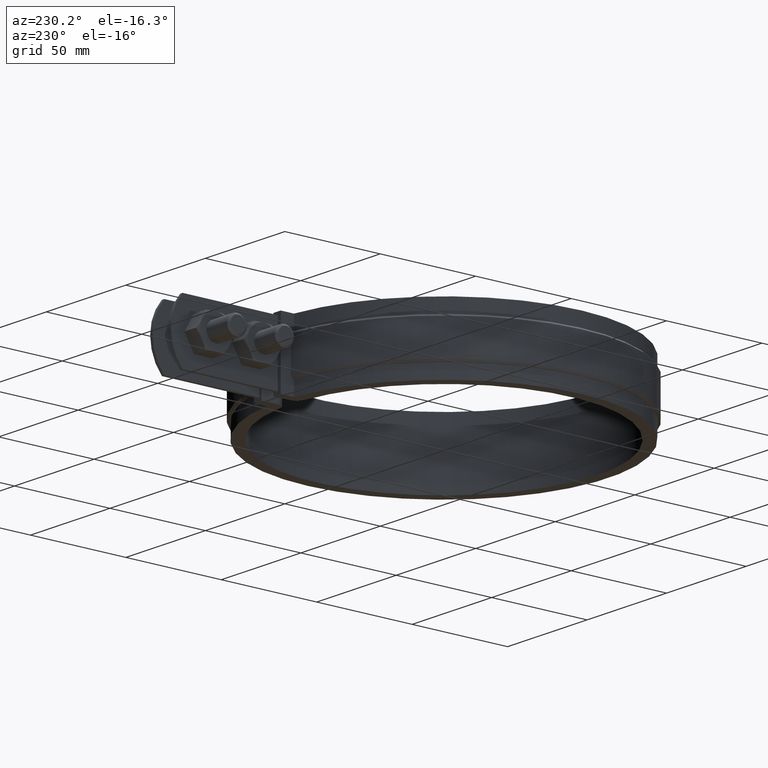
[diagram: clean part render]
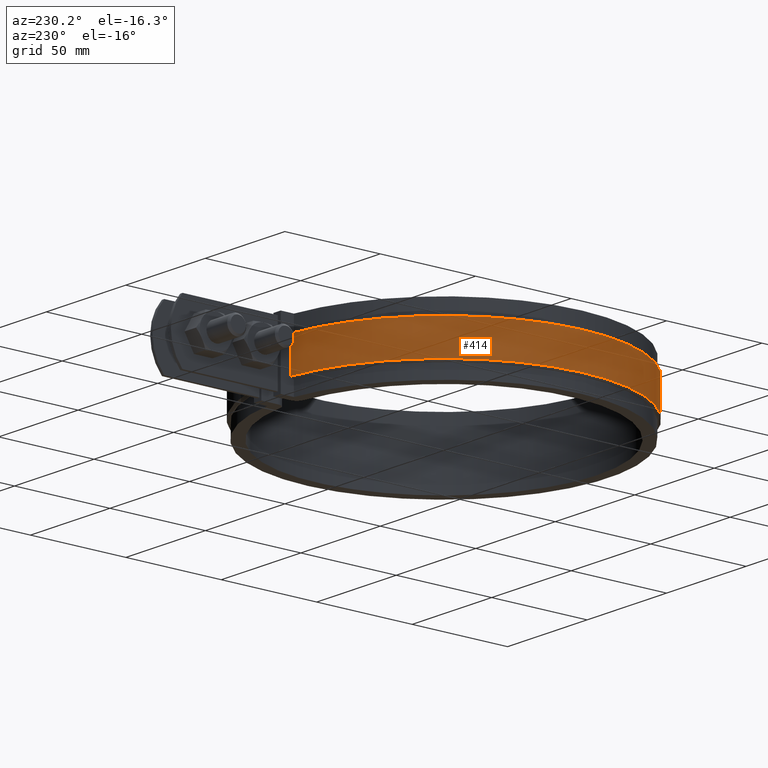
[diagram: same view with one face highlighted and labeled with its STEP entity id]
A machine part, auxiliary view. The second image highlights one B-rep face of the part: STEP entity #414.
In plain terms, the highlighted cylindrical surface (partial cylindrical patch) has radius 87.5 mm, axis along (0, 0, -1).
Its self-contained STEP definition (entity closure, byte-faithful):
#414 = ADVANCED_FACE( '', ( #688 ), #689, .T. );
#688 = FACE_OUTER_BOUND( '', #1769, .T. );
#689 = CYLINDRICAL_SURFACE( '', #1770, 87.5000000000000 );
#1769 = EDGE_LOOP( '', ( #4164, #4165, #4166, #4167 ) );
#1770 = AXIS2_PLACEMENT_3D( '', #4168, #4169, #4170 );
#4164 = ORIENTED_EDGE( '', *, *, #4877, .T. );
#4165 = ORIENTED_EDGE( '', *, *, #4855, .T. );
#4166 = ORIENTED_EDGE( '', *, *, #4835, .F. );
#4167 = ORIENTED_EDGE( '', *, *, #4845, .T. );
#4168 = CARTESIAN_POINT( '', ( 0.000000000000000, 0.000000000000000, -26.0000000000000 ) );
#4169 = DIRECTION( '', ( 0.000000000000000, 0.000000000000000, -1.00000000000000 ) );
#4170 = DIRECTION( '', ( 0.284686447455866, 0.958620689655172, 0.000000000000000 ) );
#4835 = EDGE_CURVE( '', #5394, #5396, #5397, .T. );
#4845 = EDGE_CURVE( '', #5394, #5410, #5412, .F. );
#4855 = EDGE_CURVE( '', #5424, #5396, #5428, .T. );
#4877 = EDGE_CURVE( '', #5410, #5424, #5462, .T. );
#5394 = VERTEX_POINT( '', #8195 );
#5396 = VERTEX_POINT( '', #8200 );
#5397 = LINE( '', #8201, #8202 );
#5410 = VERTEX_POINT( '', #8224 );
#5412 = CIRCLE( '', #8227, 87.5000000000000 );
#5424 = VERTEX_POINT( '', #8243 );
#5428 = CIRCLE( '', #8248, 87.5000000000000 );
#5462 = LINE( '', #8294, #8295 );
#8195 = CARTESIAN_POINT( '', ( -8.40000000000004, 87.0958667216763, -25.0000000000000 ) );
#8200 = CARTESIAN_POINT( '', ( -8.40000000000004, 87.0958667216763, -7.00000000000000 ) );
#8201 = CARTESIAN_POINT( '', ( -8.40000000000004, 87.0958667216763, -26.0000000000000 ) );
#8202 = VECTOR( '', #8890, 1000.00000000000 );
#8224 = CARTESIAN_POINT( '', ( -24.9100641523883, -83.8793103448276, -25.0000000000000 ) );
#8227 = AXIS2_PLACEMENT_3D( '', #8901, #8902, #8903 );
#8243 = CARTESIAN_POINT( '', ( -24.9100641523883, -83.8793103448276, -7.00000000000000 ) );
#8248 = AXIS2_PLACEMENT_3D( '', #8921, #8922, #8923 );
#8294 = CARTESIAN_POINT( '', ( -24.9100641523883, -83.8793103448276, -26.0000000000000 ) );
#8295 = VECTOR( '', #8963, 1000.00000000000 );
#8890 = DIRECTION( '', ( 0.000000000000000, 0.000000000000000, 1.00000000000000 ) );
#8901 = CARTESIAN_POINT( '', ( 0.000000000000000, 0.000000000000000, -25.0000000000000 ) );
#8902 = DIRECTION( '', ( 0.000000000000000, 0.000000000000000, -1.00000000000000 ) );
#8903 = DIRECTION( '', ( -1.00000000000000, 0.000000000000000, 0.000000000000000 ) );
#8921 = CARTESIAN_POINT( '', ( 0.000000000000000, 0.000000000000000, -7.00000000000000 ) );
#8922 = DIRECTION( '', ( 0.000000000000000, 0.000000000000000, -1.00000000000000 ) );
#8923 = DIRECTION( '', ( -1.00000000000000, 0.000000000000000, 0.000000000000000 ) );
#8963 = DIRECTION( '', ( 0.000000000000000, 0.000000000000000, 1.00000000000000 ) );